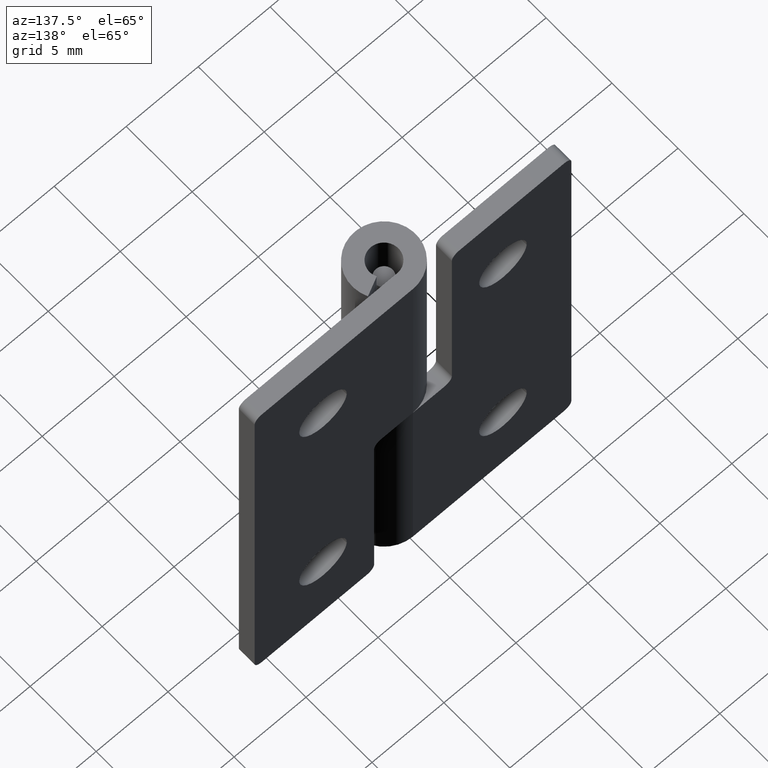
[diagram: clean part render]
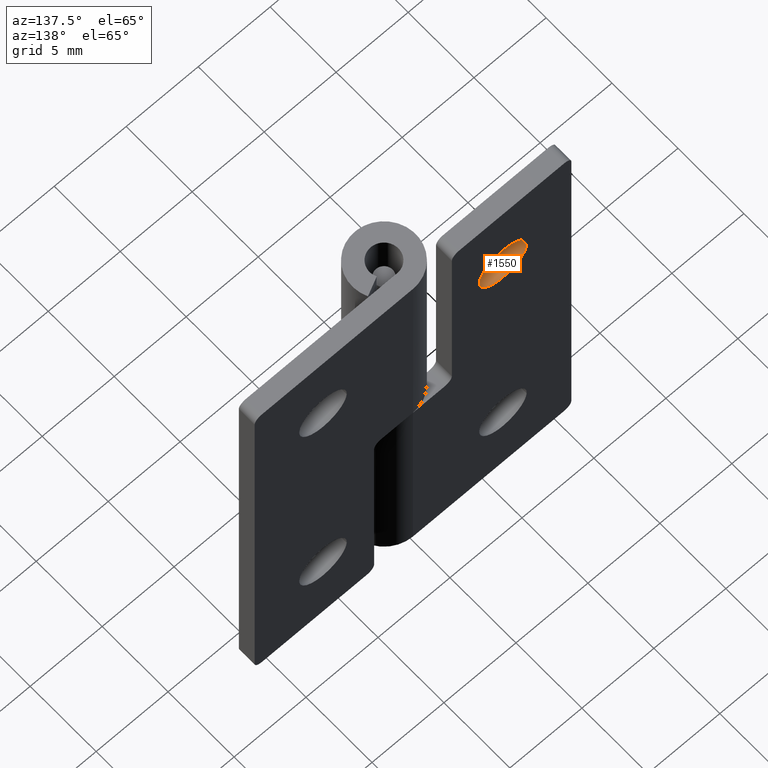
[diagram: same view with one face highlighted and labeled with its STEP entity id]
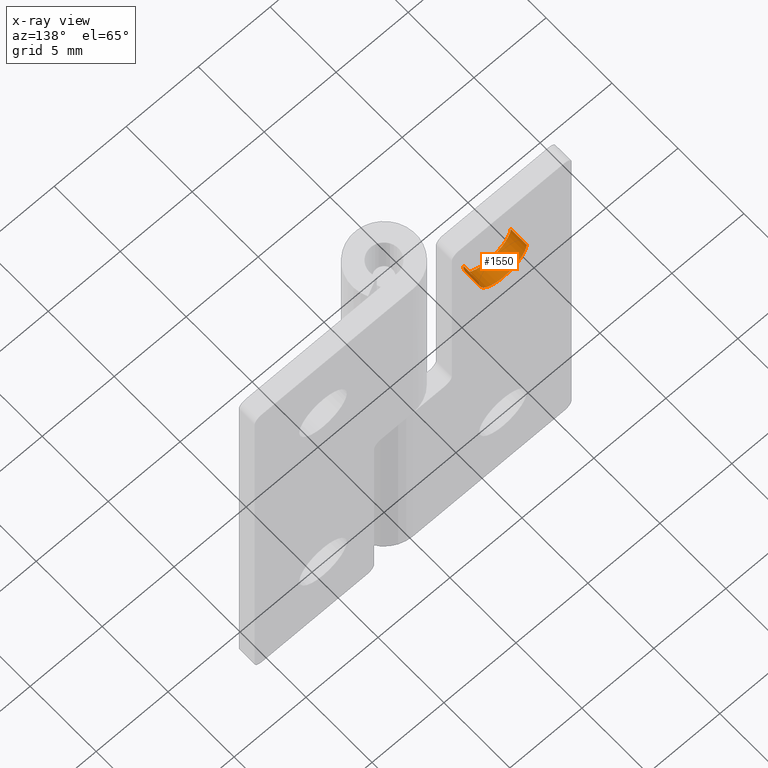
[diagram: x-ray of the same camera — body ghosted, the highlighted face saturated]
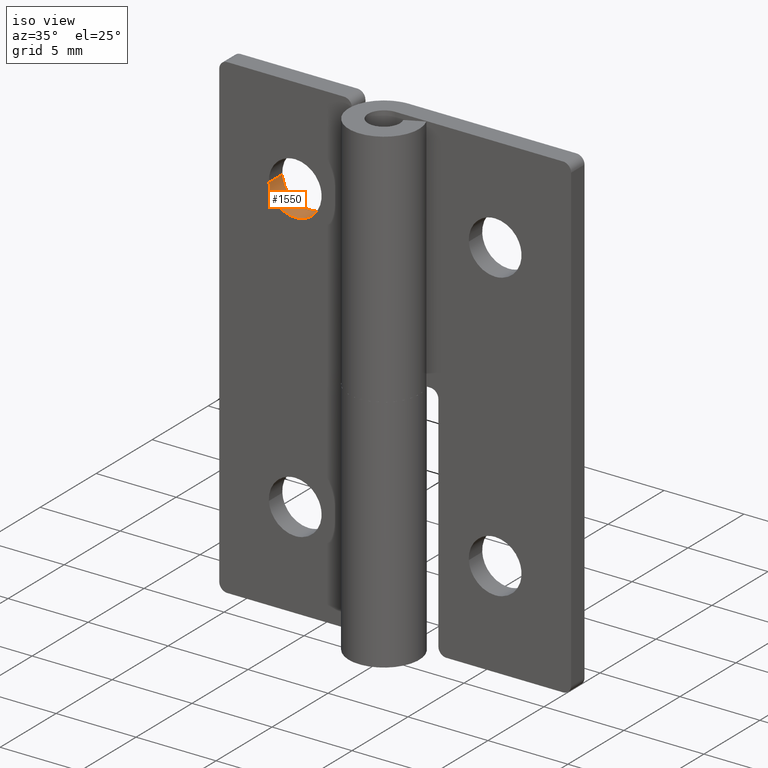
[diagram: same view with one face highlighted and labeled with its STEP entity id]
A machine part, auxiliary view. The second image highlights one B-rep face of the part: STEP entity #1550.
The next image is the same camera in x-ray: the body ghosted, the highlighted face saturated — about 0% of this face is hidden behind the body in this view.
A second angle (iso view) of the same face is appended — the face is thin or edge-on in the first view.
In plain terms, the highlighted face is a freeform B-spline surface patch.
Its self-contained STEP definition (entity closure, byte-faithful):
#1448=CARTESIAN_POINT('',(-4.611534281499950,0.969999974966049,24.194756487183660));
#1449=CARTESIAN_POINT('',(-4.605960434509800,0.969999974966049,24.147864302252671));
#1450=CARTESIAN_POINT('',(-4.603077582603920,0.969999974966049,24.100730090232510));
#1451=CARTESIAN_POINT('',(-4.502347492371406,0.969999974966049,22.453807672836426));
#1452=CARTESIAN_POINT('',(-6.149269909767486,0.969999974966049,22.353077582603920));
#1453=CARTESIAN_POINT('',(-7.796192327163567,0.969999974966049,22.252347492371410));
#1454=CARTESIAN_POINT('',(-7.896922417396080,0.969999974966049,23.899269909767490));
#1455=CARTESIAN_POINT('',(-4.611534281499950,2.230751027017831,24.194756487183660));
#1456=CARTESIAN_POINT('',(-4.605960434509800,2.230751027017831,24.147864302252671));
#1457=CARTESIAN_POINT('',(-4.603077582603920,2.230751027017830,24.100730090232510));
#1458=CARTESIAN_POINT('',(-4.502347492371406,2.230751027017830,22.453807672836426));
#1459=CARTESIAN_POINT('',(-6.149269909767486,2.230751027017830,22.353077582603920));
#1460=CARTESIAN_POINT('',(-7.796192327163567,2.230751027017830,22.252347492371410));
#1461=CARTESIAN_POINT('',(-7.896922417396080,2.230751027017830,23.899269909767490));
#1469=(BOUNDED_SURFACE()B_SPLINE_SURFACE(2,1,((#1448,#1455),(#1449,#1456),(#1450,#1457),(#1451,#1458),(#1452,#1459),(#1453,#1460),(#1454,#1461)),.UNSPECIFIED.,.F.,.F.,.U.)B_SPLINE_SURFACE_WITH_KNOTS((3,2,2,3),(2,2),(3.078760800517997,3.141592653589793,4.712388980384690,6.283185307179586),(0.0,1.0),.UNSPECIFIED.)GEOMETRIC_REPRESENTATION_ITEM()RATIONAL_B_SPLINE_SURFACE(((0.977505800795127,0.977505800795127),(0.988284271247462,0.988284271247462),(1.0,1.0),(0.707106781186548,0.707106781186548),(1.0,1.0),(0.707106781186548,0.707106781186548),(1.0,1.0)))REPRESENTATION_ITEM('')SURFACE());
#1470=CARTESIAN_POINT('',(-4.611533955230199,1.000000000000129,24.194753742271519));
#1471=VERTEX_POINT('',#1470);
#1472=CARTESIAN_POINT('',(-6.250000000000000,1.0,22.350000000000001));
#1473=VERTEX_POINT('',#1472);
#1474=CARTESIAN_POINT('',(-4.611533955230199,1.000000000000129,24.194753742271516));
#1475=CARTESIAN_POINT('',(-4.600000000000000,1.0,24.097718410460498));
#1476=CARTESIAN_POINT('',(-4.600000000000000,1.0,24.0));
#1477=CARTESIAN_POINT('',(-4.599999999999999,1.0,22.350000000000001));
#1478=CARTESIAN_POINT('',(-6.250000000000000,1.0,22.350000000000001));
#1486=(BOUNDED_CURVE()B_SPLINE_CURVE(2,(#1474,#1475,#1476,#1477,#1478),.UNSPECIFIED.,.F.,.U.)B_SPLINE_CURVE_WITH_KNOTS((3,2,3),(0.229562756645836,0.250000000000000,0.500000000000000),.UNSPECIFIED.)CURVE()GEOMETRIC_REPRESENTATION_ITEM()RATIONAL_B_SPLINE_CURVE((0.956027309135400,0.976056280041301,1.0,0.707106781186548,1.0))REPRESENTATION_ITEM(''));
#1487=EDGE_CURVE('',#1471,#1473,#1486,.T.);
#1488=ORIENTED_EDGE('',*,*,#1487,.F.);
#1489=CARTESIAN_POINT('',(-4.611533959151226,2.200001001358030,24.194753775259642));
#1490=VERTEX_POINT('',#1489);
#1491=CARTESIAN_POINT('',(-4.611533955230199,1.000000000000129,24.194753742271519));
#1492=CARTESIAN_POINT('',(-4.611533959151226,2.200001001358030,24.194753775259642));
#1493=QUASI_UNIFORM_CURVE('',1,(#1491,#1492),.UNSPECIFIED.,.F.,.U.);
#1494=EDGE_CURVE('',#1471,#1490,#1493,.T.);
#1495=ORIENTED_EDGE('',*,*,#1494,.T.);
#1496=CARTESIAN_POINT('',(-6.250000000000000,2.200001001358030,22.350000000000001));
#1497=VERTEX_POINT('',#1496);
#1498=CARTESIAN_POINT('',(-4.611533959151226,2.200001001358029,24.194753775259645));
#1499=CARTESIAN_POINT('',(-4.600000000000000,2.200001001358031,24.097718427128928));
#1500=CARTESIAN_POINT('',(-4.600000000000000,2.200001001358030,24.0));
#1501=CARTESIAN_POINT('',(-4.599999999999999,2.200001001358030,22.350000000000001));
#1502=CARTESIAN_POINT('',(-6.250000000000000,2.200001001358030,22.350000000000001));
#1510=(BOUNDED_CURVE()B_SPLINE_CURVE(2,(#1498,#1499,#1500,#1501,#1502),.UNSPECIFIED.,.F.,.U.)B_SPLINE_CURVE_WITH_KNOTS((3,2,3),(0.229562753243202,0.250000000000000,0.500000000000000),.UNSPECIFIED.)CURVE()GEOMETRIC_REPRESENTATION_ITEM()RATIONAL_B_SPLINE_CURVE((0.956027302466079,0.976056276054866,1.0,0.707106781186548,1.0))REPRESENTATION_ITEM(''));
#1511=EDGE_CURVE('',#1490,#1497,#1510,.T.);
#1512=ORIENTED_EDGE('',*,*,#1511,.T.);
#1513=CARTESIAN_POINT('',(-7.896922417392382,2.200001001358030,23.899269909707009));
#1514=VERTEX_POINT('',#1513);
#1515=CARTESIAN_POINT('',(-6.250000000000000,2.200001001358030,22.350000000000001));
#1516=CARTESIAN_POINT('',(-7.802165010280180,2.200001001358031,22.350000000000001));
#1517=CARTESIAN_POINT('',(-7.896922417392382,2.200001001358031,23.899269909707009));
#1525=(BOUNDED_CURVE()B_SPLINE_CURVE(2,(#1515,#1516,#1517),.UNSPECIFIED.,.F.,.U.)B_SPLINE_CURVE_WITH_KNOTS((3,3),(0.500000000000000,0.739332962229295),.UNSPECIFIED.)CURVE()GEOMETRIC_REPRESENTATION_ITEM()RATIONAL_B_SPLINE_CURVE((1.0,0.719603993298013,0.976072041646040))REPRESENTATION_ITEM(''));
#1526=EDGE_CURVE('',#1497,#1514,#1525,.T.);
#1527=ORIENTED_EDGE('',*,*,#1526,.T.);
#1528=CARTESIAN_POINT('',(-7.896922417392382,1.0,23.899269909707009));
#1529=VERTEX_POINT('',#1528);
#1530=CARTESIAN_POINT('',(-7.896922417392382,1.0,23.899269909707009));
#1531=CARTESIAN_POINT('',(-7.896922417392382,2.200001001358030,23.899269909707009));
#1532=QUASI_UNIFORM_CURVE('',1,(#1530,#1531),.UNSPECIFIED.,.F.,.U.);
#1533=EDGE_CURVE('',#1529,#1514,#1532,.T.);
#1534=ORIENTED_EDGE('',*,*,#1533,.F.);
#1535=CARTESIAN_POINT('',(-6.250000000000000,1.0,22.350000000000001));
#1536=CARTESIAN_POINT('',(-7.802165010280180,1.0,22.350000000000001));
#1537=CARTESIAN_POINT('',(-7.896922417392382,1.0,23.899269909707009));
#1545=(BOUNDED_CURVE()B_SPLINE_CURVE(2,(#1535,#1536,#1537),.UNSPECIFIED.,.F.,.U.)B_SPLINE_CURVE_WITH_KNOTS((3,3),(0.500000000000000,0.739332962229295),.UNSPECIFIED.)CURVE()GEOMETRIC_REPRESENTATION_ITEM()RATIONAL_B_SPLINE_CURVE((1.0,0.719603993298013,0.976072041646040))REPRESENTATION_ITEM(''));
#1546=EDGE_CURVE('',#1473,#1529,#1545,.T.);
#1547=ORIENTED_EDGE('',*,*,#1546,.F.);
#1548=EDGE_LOOP('',(#1488,#1495,#1512,#1527,#1534,#1547));
#1549=FACE_OUTER_BOUND('',#1548,.T.);
#1550=ADVANCED_FACE('',(#1549),#1469,.F.);